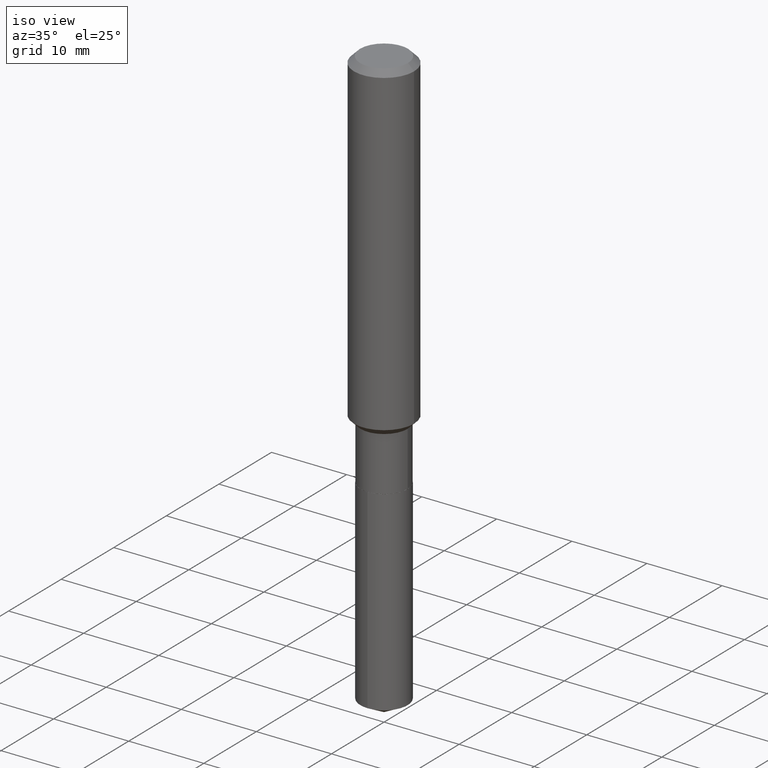
[diagram: clean part render]
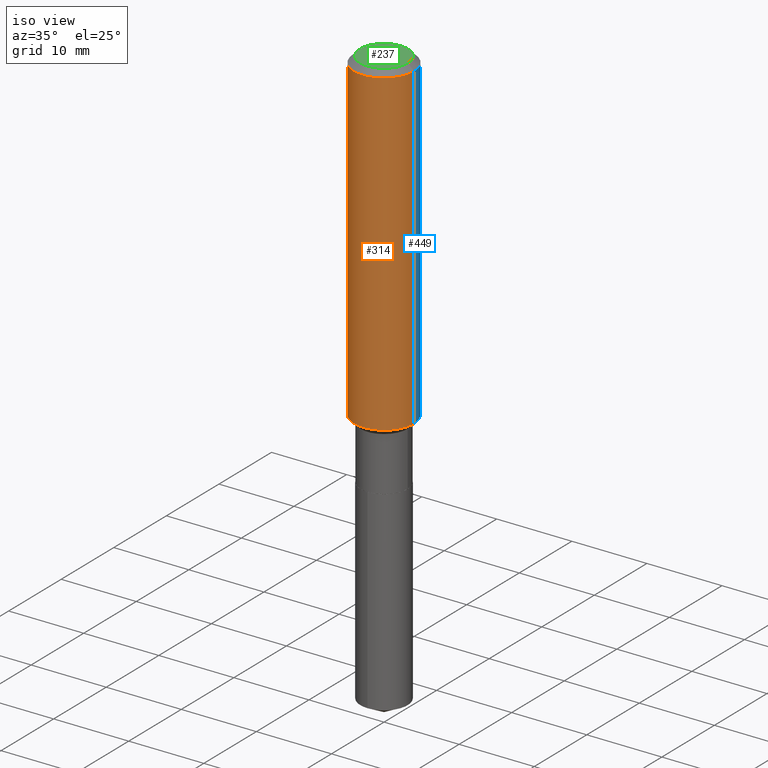
[diagram: same view with three faces highlighted in distinct colors, each labeled with its STEP entity id]
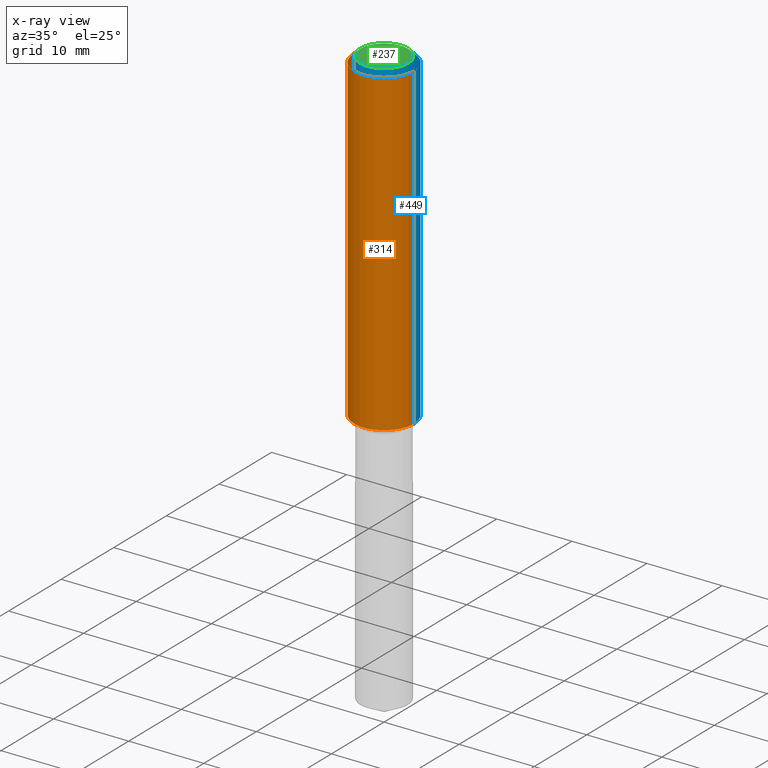
[diagram: x-ray of the same camera — body ghosted, the three highlighted faces saturated]
A machine part, iso view with three faces highlighted in distinct colors.
The next image is the same camera in x-ray (body ghosted, the three faces saturated) — at least one of them is partly hidden behind the body in this view.
Their STEP definitions:

[orange] entity #314 — the highlighted cylindrical surface (partial cylindrical patch) has radius 4.0005 mm, axis along (-0, 0, 1).
#8 = DIRECTION ( 'NONE',  ( -2.445468806185136597E-29, 3.491481338843145583E-15, 1.000000000000000000 ) ) ;
#12 = ORIENTED_EDGE ( 'NONE', *, *, #368, .T. ) ;
#24 = CYLINDRICAL_SURFACE ( 'NONE', #77, 0.1575000000000000844 ) ;
#32 = EDGE_CURVE ( 'NONE', #331, #256, #211, .T. ) ;
#34 = VECTOR ( 'NONE', #62, 39.37007874015748143 ) ;
#37 = DIRECTION ( 'NONE',  ( 1.000000000000000000, -6.982962677686265922E-15, 0.000000000000000000 ) ) ;
#62 = DIRECTION ( 'NONE',  ( -2.445468806185136877E-29, 3.491481338843145188E-15, 1.000000000000000000 ) ) ;
#77 = AXIS2_PLACEMENT_3D ( 'NONE', #255, #215, #136 ) ;
#94 = AXIS2_PLACEMENT_3D ( 'NONE', #444, #263, #37 ) ;
#95 = CIRCLE ( 'NONE', #388, 0.1575000000000000011 ) ;
#105 = VECTOR ( 'NONE', #321, 39.37007874015748143 ) ;
#123 = LINE ( 'NONE', #431, #105 ) ;
#125 = EDGE_CURVE ( 'NONE', #331, #234, #123, .T. ) ;
#134 = ORIENTED_EDGE ( 'NONE', *, *, #233, .F. ) ;
#136 = DIRECTION ( 'NONE',  ( 1.000000000000000000, -6.982962677686267499E-15, 4.876176775795936353E-29 ) ) ;
#139 = CARTESIAN_POINT ( 'NONE',  ( -0.1575000000000000011, -1.905216326883773903E-15, -0.03150000000000019451 ) ) ;
#171 = VERTEX_POINT ( 'NONE', #228 ) ;
#209 = ORIENTED_EDGE ( 'NONE', *, *, #32, .T. ) ;
#211 = CIRCLE ( 'NONE', #94, 0.1575000000000001954 ) ;
#215 = DIRECTION ( 'NONE',  ( -2.445468806185136597E-29, 3.491481338843145583E-15, 1.000000000000000000 ) ) ;
#228 = CARTESIAN_POINT ( 'NONE',  ( 0.1575000000000000011, -1.209798283909146741E-15, -0.03150000000000019451 ) ) ;
#233 = EDGE_CURVE ( 'NONE', #234, #171, #95, .T. ) ;
#234 = VERTEX_POINT ( 'NONE', #139 ) ;
#255 = CARTESIAN_POINT ( 'NONE',  ( 0.000000000000000000, 0.000000000000000000, 0.000000000000000000 ) ) ;
#256 = VERTEX_POINT ( 'NONE', #343 ) ;
#263 = DIRECTION ( 'NONE',  ( -2.445468806185136597E-29, 3.491481338843145583E-15, 1.000000000000000000 ) ) ;
#314 = ADVANCED_FACE ( 'NONE', ( #377 ), #24, .T. ) ;
#321 = DIRECTION ( 'NONE',  ( -2.445468806185136877E-29, 3.491481338843145188E-15, 1.000000000000000000 ) ) ;
#324 = LINE ( 'NONE', #329, #34 ) ;
#329 = CARTESIAN_POINT ( 'NONE',  ( 0.1575000000000000844, -1.099816621735587677E-15, 7.679978421878603638E-30 ) ) ;
#331 = VERTEX_POINT ( 'NONE', #408 ) ;
#343 = CARTESIAN_POINT ( 'NONE',  ( 0.1575000000000001954, -7.038477230973894979E-15, -1.700900000000000079 ) ) ;
#344 = EDGE_LOOP ( 'NONE', ( #416, #209, #12, #134 ) ) ;
#368 = EDGE_CURVE ( 'NONE', #256, #171, #324, .T. ) ;
#377 = FACE_OUTER_BOUND ( 'NONE', #344, .T. ) ;
#388 = AXIS2_PLACEMENT_3D ( 'NONE', #427, #8, #438 ) ;
#408 = CARTESIAN_POINT ( 'NONE',  ( -0.1575000000000001954, -4.819555800416148317E-15, -1.700900000000000079 ) ) ;
#416 = ORIENTED_EDGE ( 'NONE', *, *, #125, .F. ) ;
#427 = CARTESIAN_POINT ( 'NONE',  ( 7.703226739483228723E-31, -1.099816621735597661E-16, -0.03150000000000019451 ) ) ;
#431 = CARTESIAN_POINT ( 'NONE',  ( -0.1575000000000000844, 1.119104808822158392E-15, -7.747322767151481189E-30 ) ) ;
#438 = DIRECTION ( 'NONE',  ( 1.000000000000000000, -6.982962677686265922E-15, 0.000000000000000000 ) ) ;
#444 = CARTESIAN_POINT ( 'NONE',  ( 4.159497892440299257E-29, -5.938660609238306710E-15, -1.700900000000000079 ) ) ;

[blue] entity #449 — the highlighted cylindrical surface (partial cylindrical patch) has radius 4.0005 mm, axis along (-0, 0, 1).
#9 = ORIENTED_EDGE ( 'NONE', *, *, #368, .F. ) ;
#11 = CARTESIAN_POINT ( 'NONE',  ( 4.159497892440299257E-29, -5.938660609238306710E-15, -1.700900000000000079 ) ) ;
#17 = FACE_OUTER_BOUND ( 'NONE', #51, .T. ) ;
#34 = VECTOR ( 'NONE', #62, 39.37007874015748143 ) ;
#49 = DIRECTION ( 'NONE',  ( -2.445468806185136597E-29, 3.491481338843145583E-15, 1.000000000000000000 ) ) ;
#51 = EDGE_LOOP ( 'NONE', ( #54, #322, #277, #9 ) ) ;
#54 = ORIENTED_EDGE ( 'NONE', *, *, #107, .T. ) ;
#62 = DIRECTION ( 'NONE',  ( -2.445468806185136877E-29, 3.491481338843145188E-15, 1.000000000000000000 ) ) ;
#105 = VECTOR ( 'NONE', #321, 39.37007874015748143 ) ;
#107 = EDGE_CURVE ( 'NONE', #256, #331, #440, .T. ) ;
#119 = DIRECTION ( 'NONE',  ( 1.000000000000000000, -6.982962677686265922E-15, 0.000000000000000000 ) ) ;
#123 = LINE ( 'NONE', #431, #105 ) ;
#125 = EDGE_CURVE ( 'NONE', #331, #234, #123, .T. ) ;
#139 = CARTESIAN_POINT ( 'NONE',  ( -0.1575000000000000011, -1.905216326883773903E-15, -0.03150000000000019451 ) ) ;
#150 = DIRECTION ( 'NONE',  ( -2.445468806185136597E-29, 3.491481338843145583E-15, 1.000000000000000000 ) ) ;
#160 = EDGE_CURVE ( 'NONE', #171, #234, #238, .T. ) ;
#171 = VERTEX_POINT ( 'NONE', #228 ) ;
#186 = CYLINDRICAL_SURFACE ( 'NONE', #393, 0.1575000000000000844 ) ;
#188 = DIRECTION ( 'NONE',  ( -2.445468806185136597E-29, 3.491481338843145583E-15, 1.000000000000000000 ) ) ;
#228 = CARTESIAN_POINT ( 'NONE',  ( 0.1575000000000000011, -1.209798283909146741E-15, -0.03150000000000019451 ) ) ;
#234 = VERTEX_POINT ( 'NONE', #139 ) ;
#238 = CIRCLE ( 'NONE', #309, 0.1575000000000000011 ) ;
#256 = VERTEX_POINT ( 'NONE', #343 ) ;
#277 = ORIENTED_EDGE ( 'NONE', *, *, #160, .F. ) ;
#288 = CARTESIAN_POINT ( 'NONE',  ( 0.000000000000000000, 0.000000000000000000, 0.000000000000000000 ) ) ;
#289 = DIRECTION ( 'NONE',  ( 1.000000000000000000, -6.982962677686265922E-15, 0.000000000000000000 ) ) ;
#309 = AXIS2_PLACEMENT_3D ( 'NONE', #313, #49, #289 ) ;
#313 = CARTESIAN_POINT ( 'NONE',  ( 7.703226739483228723E-31, -1.099816621735597661E-16, -0.03150000000000019451 ) ) ;
#321 = DIRECTION ( 'NONE',  ( -2.445468806185136877E-29, 3.491481338843145188E-15, 1.000000000000000000 ) ) ;
#322 = ORIENTED_EDGE ( 'NONE', *, *, #125, .T. ) ;
#324 = LINE ( 'NONE', #329, #34 ) ;
#329 = CARTESIAN_POINT ( 'NONE',  ( 0.1575000000000000844, -1.099816621735587677E-15, 7.679978421878603638E-30 ) ) ;
#331 = VERTEX_POINT ( 'NONE', #408 ) ;
#343 = CARTESIAN_POINT ( 'NONE',  ( 0.1575000000000001954, -7.038477230973894979E-15, -1.700900000000000079 ) ) ;
#368 = EDGE_CURVE ( 'NONE', #256, #171, #324, .T. ) ;
#392 = AXIS2_PLACEMENT_3D ( 'NONE', #11, #188, #119 ) ;
#393 = AXIS2_PLACEMENT_3D ( 'NONE', #288, #150, #472 ) ;
#408 = CARTESIAN_POINT ( 'NONE',  ( -0.1575000000000001954, -4.819555800416148317E-15, -1.700900000000000079 ) ) ;
#431 = CARTESIAN_POINT ( 'NONE',  ( -0.1575000000000000844, 1.119104808822158392E-15, -7.747322767151481189E-30 ) ) ;
#440 = CIRCLE ( 'NONE', #392, 0.1575000000000001954 ) ;
#449 = ADVANCED_FACE ( 'NONE', ( #17 ), #186, .T. ) ;
#472 = DIRECTION ( 'NONE',  ( 1.000000000000000000, -6.982962677686267499E-15, 4.876176775795936353E-29 ) ) ;

[green] entity #237 — the highlighted planar face has unit normal (0, -0, -1).
#28 = PLANE ( 'NONE',  #247 ) ;
#63 = VERTEX_POINT ( 'NONE', #114 ) ;
#92 = ORIENTED_EDGE ( 'NONE', *, *, #184, .T. ) ;
#113 = DIRECTION ( 'NONE',  ( 1.000000000000000000, -6.982962677686265922E-15, 4.876281427513067258E-29 ) ) ;
#114 = CARTESIAN_POINT ( 'NONE',  ( -0.1260000000000000009, 9.348441284752484904E-16, 3.860086710906114178E-18 ) ) ;
#147 = AXIS2_PLACEMENT_3D ( 'NONE', #241, #316, #113 ) ;
#184 = EDGE_CURVE ( 'NONE', #412, #63, #258, .T. ) ;
#195 = EDGE_CURVE ( 'NONE', #63, #412, #273, .T. ) ;
#204 = DIRECTION ( 'NONE',  ( -1.000000000000000000, 6.982962677686265922E-15, -4.876176775795935793E-29 ) ) ;
#226 = AXIS2_PLACEMENT_3D ( 'NONE', #463, #403, #330 ) ;
#237 = ADVANCED_FACE ( 'NONE', ( #484 ), #28, .F. ) ;
#241 = CARTESIAN_POINT ( 'NONE',  ( -9.439721640706201686E-47, 1.347742071746726764E-32, 3.860086710912459732E-18 ) ) ;
#247 = AXIS2_PLACEMENT_3D ( 'NONE', #475, #409, #204 ) ;
#258 = CIRCLE ( 'NONE', #147, 0.1260000000000000009 ) ;
#273 = CIRCLE ( 'NONE', #226, 0.1260000000000000009 ) ;
#312 = CARTESIAN_POINT ( 'NONE',  ( 0.1260000000000000009, -1.027466422270894443E-15, 3.860086710919128072E-18 ) ) ;
#316 = DIRECTION ( 'NONE',  ( -2.445468806185136597E-29, 3.491481338843145583E-15, 1.000000000000000000 ) ) ;
#330 = DIRECTION ( 'NONE',  ( 1.000000000000000000, -6.982962677686265922E-15, 4.876281427513067258E-29 ) ) ;
#399 = EDGE_LOOP ( 'NONE', ( #442, #92 ) ) ;
#403 = DIRECTION ( 'NONE',  ( -2.445468806185136597E-29, 3.491481338843145583E-15, 1.000000000000000000 ) ) ;
#409 = DIRECTION ( 'NONE',  ( 2.438088387897960049E-29, -3.491481338843145188E-15, -1.000000000000000000 ) ) ;
#412 = VERTEX_POINT ( 'NONE', #312 ) ;
#442 = ORIENTED_EDGE ( 'NONE', *, *, #195, .T. ) ;
#463 = CARTESIAN_POINT ( 'NONE',  ( -9.439721640706201686E-47, 1.347742071746726764E-32, 3.860086710912459732E-18 ) ) ;
#475 = CARTESIAN_POINT ( 'NONE',  ( -4.719860820353100843E-47, 6.738710358733633822E-33, 1.930043355456229866E-18 ) ) ;
#484 = FACE_OUTER_BOUND ( 'NONE', #399, .T. ) ;